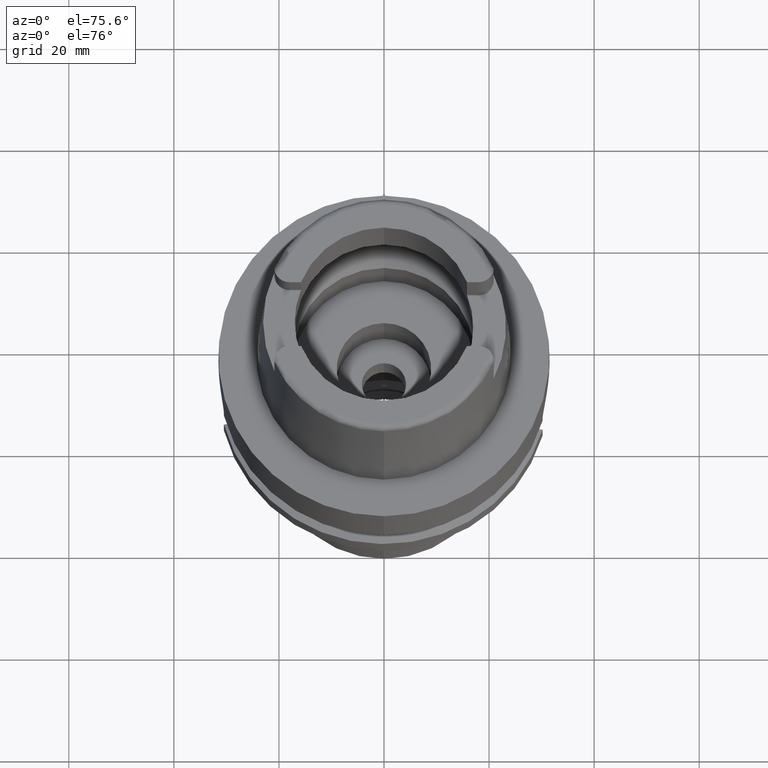
[diagram: clean part render]
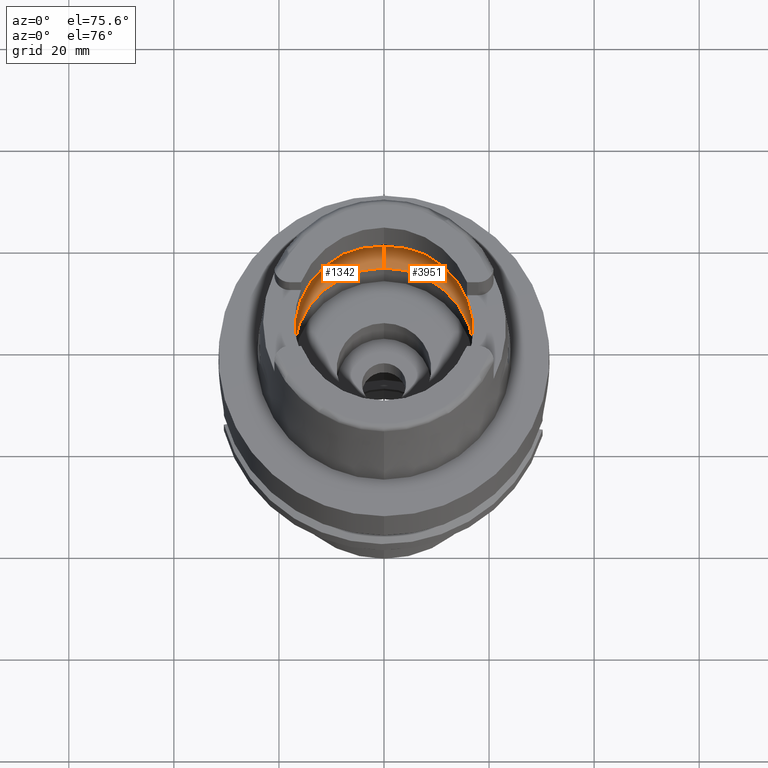
[diagram: same view with one multi-face feature highlighted, each face labeled with its STEP entity id]
A machine part, auxiliary view. The highlighted faces form ONE feature: a constant-radius fillet chain: 2 tangent blend faces with common blend radius 8 mm. The faces share edges in the B-rep.
Their STEP definitions:
[1] entity #1342 (Torus):
#39 = EDGE_CURVE ( 'NONE', #3889, #2722, #3601, .T. ) ;
#195 = VERTEX_POINT ( 'NONE', #4224 ) ;
#209 = CARTESIAN_POINT ( 'NONE',  ( -19.94501428475999916, 0.0000000000000000000, 5.250000000000000000 ) ) ;
#265 = AXIS2_PLACEMENT_3D ( 'NONE', #3129, #5053, #687 ) ;
#269 = EDGE_CURVE ( 'NONE', #4806, #3889, #4103, .T. ) ;
#271 = AXIS2_PLACEMENT_3D ( 'NONE', #5043, #2159, #6008 ) ;
#331 = CARTESIAN_POINT ( 'NONE',  ( -19.84575864665999845, -2.479085262491000030, 6.186348233825000875 ) ) ;
#359 = CARTESIAN_POINT ( 'NONE',  ( -19.94501428475999916, 0.0000000000000000000, 5.250000000000000000 ) ) ;
#430 = CARTESIAN_POINT ( 'NONE',  ( 0.0000000000000000000, 0.0000000000000000000, 0.1500000000000999700 ) ) ;
#468 = CIRCLE ( 'NONE', #3522, 20.00000000000001421 ) ;
#687 = DIRECTION ( 'NONE',  ( 0.0000000000000000000, 1.000000000000000000, 0.0000000000000000000 ) ) ;
#750 = DIRECTION ( 'NONE',  ( 0.0000000000000000000, -0.6562500000000006661, -0.7545435292281016393 ) ) ;
#755 = AXIS2_PLACEMENT_3D ( 'NONE', #1262, #2631, #750 ) ;
#783 = CARTESIAN_POINT ( 'NONE',  ( -19.94340255865083833, 0.4848947565498933909, 5.274596189388688572 ) ) ;
#834 = AXIS2_PLACEMENT_3D ( 'NONE', #5184, #2832, #1824 ) ;
#840 = CARTESIAN_POINT ( 'NONE',  ( -19.92208718948823076, -1.429900174883156350, 5.533077591732342704 ) ) ;
#912 = ORIENTED_EDGE ( 'NONE', *, *, #6011, .F. ) ;
#1133 = DIRECTION ( 'NONE',  ( -0.9922879323327794543, 0.1239542631244973381, 0.0000000000000000000 ) ) ;
#1154 = CARTESIAN_POINT ( 'NONE',  ( -19.90996177496829489, 1.795767083468379210, 5.670284047755099088 ) ) ;
#1262 = CARTESIAN_POINT ( 'NONE',  ( 0.0000000000000000000, -12.00000000000000000, 6.186348233825000875 ) ) ;
#1277 = B_SPLINE_CURVE_WITH_KNOTS ( 'NONE', 3,
 ( #331, #6192, #1811, #4247, #3743, #3272, #5198, #840, #1869, #3798, #2784, #3771, #5726, #4718, #359 ),
 .UNSPECIFIED., .F., .F.,
 ( 4, 2, 2, 1, 1, 1, 2, 2, 4 ),
 ( 0.0000000000000000000, 0.2499999999999957812, 0.3749999999999935607, 0.4374999999999926725, 0.4687499999999921729, 0.4843749999999920064, 0.4921874999999919509, 0.4999999999999920064, 1.000000000000000000 ),
 .UNSPECIFIED. ) ;
#1299 = CARTESIAN_POINT ( 'NONE',  ( -19.92647156474819425, 1.304855687904770578, 5.484336066838738866 ) ) ;
#1342 = ADVANCED_FACE ( 'NONE', ( #2130 ), #2206, .F. ) ;
#1373 = AXIS2_PLACEMENT_3D ( 'NONE', #430, #5651, #2854 ) ;
#1622 = CARTESIAN_POINT ( 'NONE',  ( 0.0000000000000000000, 0.0000000000000000000, 6.186348233825000875 ) ) ;
#1645 = CARTESIAN_POINT ( 'NONE',  ( -19.92591906827003001, 1.321585501799986462, 5.490587994735173893 ) ) ;
#1682 = CARTESIAN_POINT ( 'NONE',  ( -19.93655272268687639, 0.9259470818443067408, 5.364515645285496959 ) ) ;
#1735 = EDGE_CURVE ( 'NONE', #4806, #2492, #4332, .T. ) ;
#1811 = CARTESIAN_POINT ( 'NONE',  ( -19.88059042415784816, -2.158397635262351066, 5.925190505596781065 ) ) ;
#1824 = DIRECTION ( 'NONE',  ( 0.0000000000000000000, -1.000000000000000000, 0.0000000000000000000 ) ) ;
#1869 = CARTESIAN_POINT ( 'NONE',  ( -19.92391792695806529, -1.379670552742549017, 5.512962522875360705 ) ) ;
#1885 = B_SPLINE_CURVE_WITH_KNOTS ( 'NONE', 3,
 ( #209, #4085, #783, #2664, #1682, #2257, #4192, #5649, #2765, #1299, #5174, #1645, #1154, #3116, #5677 ),
 .UNSPECIFIED., .F., .F.,
 ( 4, 2, 2, 1, 1, 1, 2, 2, 4 ),
 ( 0.0000000000000000000, 0.2499999999999942268, 0.3749999999999913958, 0.4374999999999900635, 0.4687499999999894529, 0.4843749999999892863, 0.4921874999999892308, 0.4999999999999892308, 1.000000000000000000 ),
 .UNSPECIFIED. ) ;
#2130 = FACE_OUTER_BOUND ( 'NONE', #3480, .T. ) ;
#2159 = DIRECTION ( 'NONE',  ( 1.000000000000000000, 0.0000000000000000000, 0.0000000000000000000 ) ) ;
#2175 = CARTESIAN_POINT ( 'NONE',  ( 0.0000000000000000000, -20.00000000000000000, 6.186348233825000875 ) ) ;
#2206 = TOROIDAL_SURFACE ( 'NONE', #265, 12.00000000000000000, 8.000000000000000000 ) ;
#2257 = CARTESIAN_POINT ( 'NONE',  ( -19.93292633894125032, 1.081457122330341747, 5.408919853929954336 ) ) ;
#2332 = ORIENTED_EDGE ( 'NONE', *, *, #3922, .F. ) ;
#2428 = EDGE_CURVE ( 'NONE', #4769, #195, #1277, .T. ) ;
#2492 = VERTEX_POINT ( 'NONE', #3034 ) ;
#2631 = DIRECTION ( 'NONE',  ( -1.000000000000000000, 0.0000000000000000000, 0.0000000000000000000 ) ) ;
#2664 = CARTESIAN_POINT ( 'NONE',  ( -19.93856738032333809, 0.8183990517462441661, 5.338642722792194206 ) ) ;
#2722 = VERTEX_POINT ( 'NONE', #2175 ) ;
#2765 = CARTESIAN_POINT ( 'NONE',  ( -19.92706179647762355, 1.286754988675302247, 5.477635449957110048 ) ) ;
#2784 = CARTESIAN_POINT ( 'NONE',  ( -19.92518025587951058, -1.343452463015866627, 5.498900748199903710 ) ) ;
#2832 = DIRECTION ( 'NONE',  ( 0.0000000000000000000, 0.0000000000000000000, -1.000000000000000000 ) ) ;
#2854 = DIRECTION ( 'NONE',  ( 0.0000000000000000000, 1.000000000000000000, 0.0000000000000000000 ) ) ;
#3034 = CARTESIAN_POINT ( 'NONE',  ( 0.0000000000000000000, 20.00000000000000000, 6.186348233825000875 ) ) ;
#3059 = CARTESIAN_POINT ( 'NONE',  ( -19.84575864665999845, -2.479085262491000030, 6.186348233825000875 ) ) ;
#3116 = CARTESIAN_POINT ( 'NONE',  ( -19.88332346670495809, 2.178368557155442531, 5.921389235933154360 ) ) ;
#3129 = CARTESIAN_POINT ( 'NONE',  ( 0.0000000000000000000, 0.0000000000000000000, 6.186348233825000875 ) ) ;
#3263 = ORIENTED_EDGE ( 'NONE', *, *, #2428, .F. ) ;
#3272 = CARTESIAN_POINT ( 'NONE',  ( -19.91448717745985775, -1.610408095139941542, 5.612876396282293179 ) ) ;
#3346 = VERTEX_POINT ( 'NONE', #5788 ) ;
#3385 = ORIENTED_EDGE ( 'NONE', *, *, #39, .F. ) ;
#3480 = EDGE_LOOP ( 'NONE', ( #3735, #3385, #4125, #3511, #2332, #912, #3263 ) ) ;
#3511 = ORIENTED_EDGE ( 'NONE', *, *, #1735, .T. ) ;
#3522 = AXIS2_PLACEMENT_3D ( 'NONE', #1622, #5495, #1133 ) ;
#3601 = CIRCLE ( 'NONE', #755, 7.999999999999992895 ) ;
#3703 = CARTESIAN_POINT ( 'NONE',  ( 0.0000000000000000000, 17.25000000000000000, 0.1500000000000999700 ) ) ;
#3735 = ORIENTED_EDGE ( 'NONE', *, *, #4153, .F. ) ;
#3743 = CARTESIAN_POINT ( 'NONE',  ( -19.90654609288262122, -1.769936306168619966, 5.691842260241858575 ) ) ;
#3771 = CARTESIAN_POINT ( 'NONE',  ( -19.92547252417883641, -1.334867513091082314, 5.495621353218018257 ) ) ;
#3798 = CARTESIAN_POINT ( 'NONE',  ( -19.92467852483092017, -1.357963622241911139, 5.504503570019525505 ) ) ;
#3889 = VERTEX_POINT ( 'NONE', #4509 ) ;
#3922 = EDGE_CURVE ( 'NONE', #3346, #2492, #468, .T. ) ;
#4085 = CARTESIAN_POINT ( 'NONE',  ( -19.94501428475999916, 0.2479290550739760568, 5.249999999999999112 ) ) ;
#4103 = CIRCLE ( 'NONE', #1373, 17.25000000000000000 ) ;
#4125 = ORIENTED_EDGE ( 'NONE', *, *, #269, .F. ) ;
#4153 = EDGE_CURVE ( 'NONE', #2722, #4769, #5199, .T. ) ;
#4192 = CARTESIAN_POINT ( 'NONE',  ( -19.93096204774570879, 1.157762075072081620, 5.432521242665883321 ) ) ;
#4224 = CARTESIAN_POINT ( 'NONE',  ( -19.94501428475999916, 0.0000000000000000000, 5.250000000000000000 ) ) ;
#4247 = CARTESIAN_POINT ( 'NONE',  ( -19.90056925889987127, -1.871018165099524122, 5.748162139564427342 ) ) ;
#4332 = CIRCLE ( 'NONE', #271, 7.999999999999992895 ) ;
#4509 = CARTESIAN_POINT ( 'NONE',  ( 0.0000000000000000000, -17.25000000000000000, 0.1500000000000999700 ) ) ;
#4718 = CARTESIAN_POINT ( 'NONE',  ( -19.94501428475999916, -0.4959087842382808309, 5.249999999999998224 ) ) ;
#4769 = VERTEX_POINT ( 'NONE', #3059 ) ;
#4806 = VERTEX_POINT ( 'NONE', #3703 ) ;
#5043 = CARTESIAN_POINT ( 'NONE',  ( 0.0000000000000000000, 12.00000000000000000, 6.186348233825000875 ) ) ;
#5053 = DIRECTION ( 'NONE',  ( 0.0000000000000000000, 0.0000000000000000000, 1.000000000000000000 ) ) ;
#5174 = CARTESIAN_POINT ( 'NONE',  ( -19.92607492902601507, 1.316891584246879576, 5.488826718527257675 ) ) ;
#5184 = CARTESIAN_POINT ( 'NONE',  ( 0.0000000000000000000, 0.0000000000000000000, 6.186348233825000875 ) ) ;
#5198 = CARTESIAN_POINT ( 'NONE',  ( -19.91820167814924503, -1.528670811425639542, 5.574773783465068355 ) ) ;
#5199 = CIRCLE ( 'NONE', #834, 20.00000000000000000 ) ;
#5495 = DIRECTION ( 'NONE',  ( 0.0000000000000000000, 0.0000000000000000000, -1.000000000000000000 ) ) ;
#5649 = CARTESIAN_POINT ( 'NONE',  ( -19.92840595086944688, 1.244192535815689116, 5.462252019518305524 ) ) ;
#5651 = DIRECTION ( 'NONE',  ( 0.0000000000000000000, 0.0000000000000000000, 1.000000000000000000 ) ) ;
#5677 = CARTESIAN_POINT ( 'NONE',  ( -19.84575864665999845, 2.479085262489999941, 6.186348233825000875 ) ) ;
#5726 = CARTESIAN_POINT ( 'NONE',  ( -19.93856751838270824, -0.9457802407118157673, 5.348172554885747054 ) ) ;
#5788 = CARTESIAN_POINT ( 'NONE',  ( -19.84575864665999845, 2.479085262489999941, 6.186348233825000875 ) ) ;
#6008 = DIRECTION ( 'NONE',  ( 0.0000000000000000000, 0.6562500000000006661, -0.7545435292281016393 ) ) ;
#6011 = EDGE_CURVE ( 'NONE', #195, #3346, #1885, .T. ) ;
#6192 = CARTESIAN_POINT ( 'NONE',  ( -19.86454009060478398, -2.328734643576319652, 6.053875549024845704 ) ) ;
[2] entity #3951 (Torus):
#39 = EDGE_CURVE ( 'NONE', #3889, #2722, #3601, .T. ) ;
#127 = FACE_OUTER_BOUND ( 'NONE', #476, .T. ) ;
#170 = ORIENTED_EDGE ( 'NONE', *, *, #5246, .F. ) ;
#271 = AXIS2_PLACEMENT_3D ( 'NONE', #5043, #2159, #6008 ) ;
#278 = CARTESIAN_POINT ( 'NONE',  ( 19.92391809393505397, 1.379668374353000937, 5.512961660982391265 ) ) ;
#340 = CARTESIAN_POINT ( 'NONE',  ( 19.94501428475999560, 0.4959095983523816309, 5.249999999999999112 ) ) ;
#450 = CARTESIAN_POINT ( 'NONE',  ( 19.84575864665999845, -2.479085262491000030, 6.186348233825000875 ) ) ;
#476 = EDGE_LOOP ( 'NONE', ( #2888, #170, #2837, #2956, #597, #3884, #5128 ) ) ;
#506 = CIRCLE ( 'NONE', #4056, 20.00000000000000000 ) ;
#597 = ORIENTED_EDGE ( 'NONE', *, *, #39, .T. ) ;
#724 = DIRECTION ( 'NONE',  ( 0.0000000000000000000, 0.0000000000000000000, 1.000000000000000000 ) ) ;
#750 = DIRECTION ( 'NONE',  ( 0.0000000000000000000, -0.6562500000000006661, -0.7545435292281016393 ) ) ;
#751 = CARTESIAN_POINT ( 'NONE',  ( 19.90654626797081761, 1.769934426146181128, 5.691841251131339874 ) ) ;
#755 = AXIS2_PLACEMENT_3D ( 'NONE', #1262, #2631, #750 ) ;
#765 = VERTEX_POINT ( 'NONE', #4407 ) ;
#774 = TOROIDAL_SURFACE ( 'NONE', #4019, 12.00000000000000000, 8.000000000000000000 ) ;
#894 = CARTESIAN_POINT ( 'NONE',  ( 19.92607476611066630, -1.316893670248203696, 5.488827500829480677 ) ) ;
#1229 = CARTESIAN_POINT ( 'NONE',  ( 19.91448735469504427, 1.610406046188481932, 5.612875421313382240 ) ) ;
#1262 = CARTESIAN_POINT ( 'NONE',  ( 0.0000000000000000000, -12.00000000000000000, 6.186348233825000875 ) ) ;
#1319 = EDGE_CURVE ( 'NONE', #3641, #765, #5749, .T. ) ;
#1400 = CIRCLE ( 'NONE', #4243, 20.00000000000001421 ) ;
#1656 = DIRECTION ( 'NONE',  ( 0.0000000000000000000, 0.0000000000000000000, -1.000000000000000000 ) ) ;
#1730 = DIRECTION ( 'NONE',  ( 0.0000000000000000000, 1.000000000000000000, 0.0000000000000000000 ) ) ;
#1735 = EDGE_CURVE ( 'NONE', #4806, #2492, #4332, .T. ) ;
#1758 = CARTESIAN_POINT ( 'NONE',  ( 19.88059055109615159, 2.158396495719459462, 5.925189677144884648 ) ) ;
#1817 = CARTESIAN_POINT ( 'NONE',  ( 19.84575864665999845, 2.479085262491000030, 6.186348233825000875 ) ) ;
#1820 = CARTESIAN_POINT ( 'NONE',  ( 19.94501428475999916, 0.0000000000000000000, 5.250000000000000000 ) ) ;
#1848 = EDGE_CURVE ( 'NONE', #4274, #3641, #3921, .T. ) ;
#1896 = CARTESIAN_POINT ( 'NONE',  ( 19.94340254478684926, -0.4848942647184917298, 5.274596102033371814 ) ) ;
#1924 = CARTESIAN_POINT ( 'NONE',  ( 19.94501428475999916, 0.0000000000000000000, 5.250000000000000000 ) ) ;
#1950 = EDGE_CURVE ( 'NONE', #3889, #4806, #3924, .T. ) ;
#2069 = DIRECTION ( 'NONE',  ( 0.0000000000000000000, 1.000000000000000000, 0.0000000000000000000 ) ) ;
#2159 = DIRECTION ( 'NONE',  ( 1.000000000000000000, 0.0000000000000000000, 0.0000000000000000000 ) ) ;
#2175 = CARTESIAN_POINT ( 'NONE',  ( 0.0000000000000000000, -20.00000000000000000, 6.186348233825000875 ) ) ;
#2226 = CARTESIAN_POINT ( 'NONE',  ( 19.92467869001661995, 1.357961439187409525, 5.504502721927527986 ) ) ;
#2260 = CARTESIAN_POINT ( 'NONE',  ( 19.92547268850448816, 1.334865291962832767, 5.495620507227335416 ) ) ;
#2277 = CARTESIAN_POINT ( 'NONE',  ( 19.94501428475999916, 0.0000000000000000000, 5.250000000000000000 ) ) ;
#2339 = CARTESIAN_POINT ( 'NONE',  ( 19.90996156375606674, -1.795769246985481571, 5.670285195732481576 ) ) ;
#2492 = VERTEX_POINT ( 'NONE', #3034 ) ;
#2548 = CARTESIAN_POINT ( 'NONE',  ( 0.0000000000000000000, 0.0000000000000000000, 6.186348233825000875 ) ) ;
#2631 = DIRECTION ( 'NONE',  ( -1.000000000000000000, 0.0000000000000000000, 0.0000000000000000000 ) ) ;
#2634 = CARTESIAN_POINT ( 'NONE',  ( 19.93856757259323231, 0.9457801821284733679, 5.348172806034195759 ) ) ;
#2701 = CARTESIAN_POINT ( 'NONE',  ( 19.92208736014775994, 1.429898011590186924, 5.533076699460339754 ) ) ;
#2722 = VERTEX_POINT ( 'NONE', #2175 ) ;
#2723 = EDGE_CURVE ( 'NONE', #765, #2722, #1400, .T. ) ;
#2837 = ORIENTED_EDGE ( 'NONE', *, *, #1735, .F. ) ;
#2888 = ORIENTED_EDGE ( 'NONE', *, *, #1848, .F. ) ;
#2936 = CARTESIAN_POINT ( 'NONE',  ( 19.94501428475999560, -0.2479285940720863946, 5.249999999999998224 ) ) ;
#2956 = ORIENTED_EDGE ( 'NONE', *, *, #1950, .F. ) ;
#3034 = CARTESIAN_POINT ( 'NONE',  ( 0.0000000000000000000, 20.00000000000000000, 6.186348233825000875 ) ) ;
#3063 = CARTESIAN_POINT ( 'NONE',  ( 0.0000000000000000000, 0.0000000000000000000, 6.186348233825000875 ) ) ;
#3188 = CARTESIAN_POINT ( 'NONE',  ( 19.91820185418519884, 1.528668694906667236, 5.574772838317966439 ) ) ;
#3190 = CARTESIAN_POINT ( 'NONE',  ( 0.0000000000000000000, 0.0000000000000000000, 0.1500000000000999700 ) ) ;
#3601 = CIRCLE ( 'NONE', #755, 7.999999999999992895 ) ;
#3641 = VERTEX_POINT ( 'NONE', #2277 ) ;
#3703 = CARTESIAN_POINT ( 'NONE',  ( 0.0000000000000000000, 17.25000000000000000, 0.1500000000000999700 ) ) ;
#3770 = CARTESIAN_POINT ( 'NONE',  ( 19.93856732486741024, -0.8183991276165779594, 5.338642733814154440 ) ) ;
#3796 = CARTESIAN_POINT ( 'NONE',  ( 19.88332331094866490, -2.178369804041490276, 5.921390334554123669 ) ) ;
#3856 = CARTESIAN_POINT ( 'NONE',  ( 19.93655264990096398, -0.9259474478404787767, 5.364515726543497287 ) ) ;
#3884 = ORIENTED_EDGE ( 'NONE', *, *, #2723, .F. ) ;
#3885 = CARTESIAN_POINT ( 'NONE',  ( 19.93292623496137494, -1.081458060797942489, 5.408920133523466234 ) ) ;
#3889 = VERTEX_POINT ( 'NONE', #4509 ) ;
#3921 = B_SPLINE_CURVE_WITH_KNOTS ( 'NONE', 3,
 ( #6081, #4632, #1758, #5592, #751, #1229, #3188, #2701, #278, #2226, #4699, #2260, #2634, #340, #1820 ),
 .UNSPECIFIED., .F., .F.,
 ( 4, 2, 2, 1, 1, 1, 2, 2, 4 ),
 ( 0.0000000000000000000, 0.2500000000000033862, 0.3750000000000049405, 0.4375000000000056621, 0.4687500000000057176, 0.4843750000000056621, 0.4921875000000054956, 0.5000000000000053291, 1.000000000000000000 ),
 .UNSPECIFIED. ) ;
#3924 = CIRCLE ( 'NONE', #4097, 17.25000000000000000 ) ;
#3951 = ADVANCED_FACE ( 'NONE', ( #127 ), #774, .F. ) ;
#4019 = AXIS2_PLACEMENT_3D ( 'NONE', #2548, #724, #1730 ) ;
#4056 = AXIS2_PLACEMENT_3D ( 'NONE', #4982, #1656, #2069 ) ;
#4097 = AXIS2_PLACEMENT_3D ( 'NONE', #3190, #5111, #6172 ) ;
#4243 = AXIS2_PLACEMENT_3D ( 'NONE', #3063, #4992, #4519 ) ;
#4274 = VERTEX_POINT ( 'NONE', #1817 ) ;
#4303 = CARTESIAN_POINT ( 'NONE',  ( 19.93096192686909518, -1.157763334012747114, 5.432521644578194753 ) ) ;
#4332 = CIRCLE ( 'NONE', #271, 7.999999999999992895 ) ;
#4335 = CARTESIAN_POINT ( 'NONE',  ( 19.92591890260291621, -1.321587656400195598, 5.490588806117743026 ) ) ;
#4407 = CARTESIAN_POINT ( 'NONE',  ( 19.84575864665999845, -2.479085262491000030, 6.186348233825000875 ) ) ;
#4509 = CARTESIAN_POINT ( 'NONE',  ( 0.0000000000000000000, -17.25000000000000000, 0.1500000000000999700 ) ) ;
#4519 = DIRECTION ( 'NONE',  ( 0.9922879323327794543, -0.1239542631244973381, 0.0000000000000000000 ) ) ;
#4632 = CARTESIAN_POINT ( 'NONE',  ( 19.86454016619522989, 2.328734038445912979, 6.053875015849456531 ) ) ;
#4699 = CARTESIAN_POINT ( 'NONE',  ( 19.92518041982365418, 1.343450277255565872, 5.498899909475031045 ) ) ;
#4749 = CARTESIAN_POINT ( 'NONE',  ( 19.92706164205126385, -1.286756906106516940, 5.477636149942417987 ) ) ;
#4806 = VERTEX_POINT ( 'NONE', #3703 ) ;
#4982 = CARTESIAN_POINT ( 'NONE',  ( 0.0000000000000000000, 0.0000000000000000000, 6.186348233825000875 ) ) ;
#4992 = DIRECTION ( 'NONE',  ( 0.0000000000000000000, 0.0000000000000000000, -1.000000000000000000 ) ) ;
#5043 = CARTESIAN_POINT ( 'NONE',  ( 0.0000000000000000000, 12.00000000000000000, 6.186348233825000875 ) ) ;
#5111 = DIRECTION ( 'NONE',  ( 0.0000000000000000000, 0.0000000000000000000, 1.000000000000000000 ) ) ;
#5128 = ORIENTED_EDGE ( 'NONE', *, *, #1319, .F. ) ;
#5246 = EDGE_CURVE ( 'NONE', #2492, #4274, #506, .T. ) ;
#5256 = CARTESIAN_POINT ( 'NONE',  ( 19.92647140524467630, -1.304857706103421222, 5.484336815834931045 ) ) ;
#5592 = CARTESIAN_POINT ( 'NONE',  ( 19.90056942649606597, 1.871016442818389525, 5.748161141865908874 ) ) ;
#5749 = B_SPLINE_CURVE_WITH_KNOTS ( 'NONE', 3,
 ( #1924, #2936, #1896, #3770, #3856, #3885, #4303, #5784, #4749, #5256, #894, #4335, #2339, #3796, #450 ),
 .UNSPECIFIED., .F., .F.,
 ( 4, 2, 2, 1, 1, 1, 2, 2, 4 ),
 ( 0.0000000000000000000, 0.2499999999999947820, 0.3749999999999921174, 0.4374999999999906186, 0.4687499999999900080, 0.4843749999999897859, 0.4921874999999896194, 0.4999999999999894529, 1.000000000000000000 ),
 .UNSPECIFIED. ) ;
#5784 = CARTESIAN_POINT ( 'NONE',  ( 19.92840580800542583, -1.244194224745405863, 5.462252611686061243 ) ) ;
#6008 = DIRECTION ( 'NONE',  ( 0.0000000000000000000, 0.6562500000000006661, -0.7545435292281016393 ) ) ;
#6081 = CARTESIAN_POINT ( 'NONE',  ( 19.84575864665999845, 2.479085262491000030, 6.186348233825000875 ) ) ;
#6172 = DIRECTION ( 'NONE',  ( 0.0000000000000000000, -1.000000000000000000, 0.0000000000000000000 ) ) ;